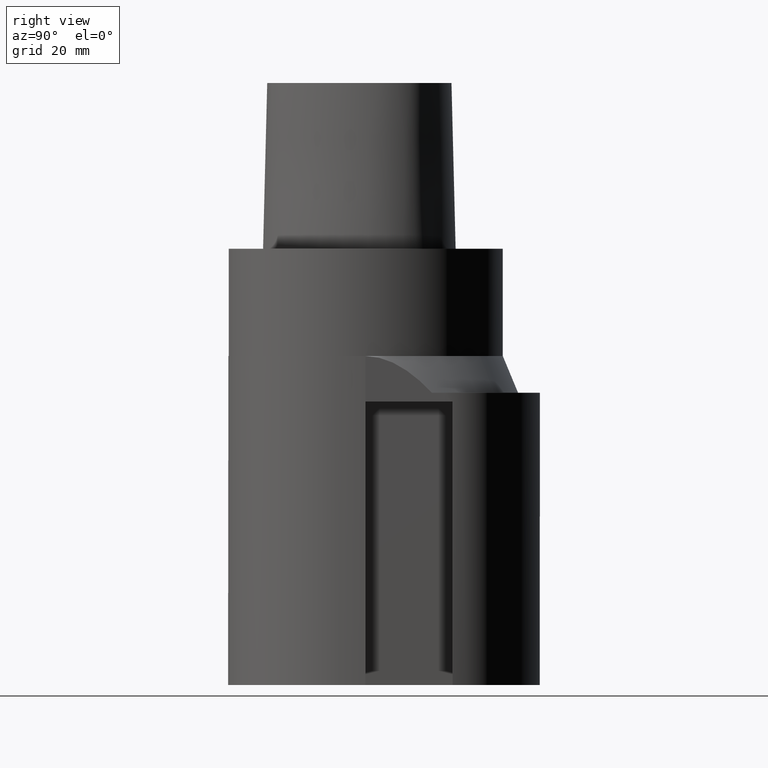
[diagram: clean part render]
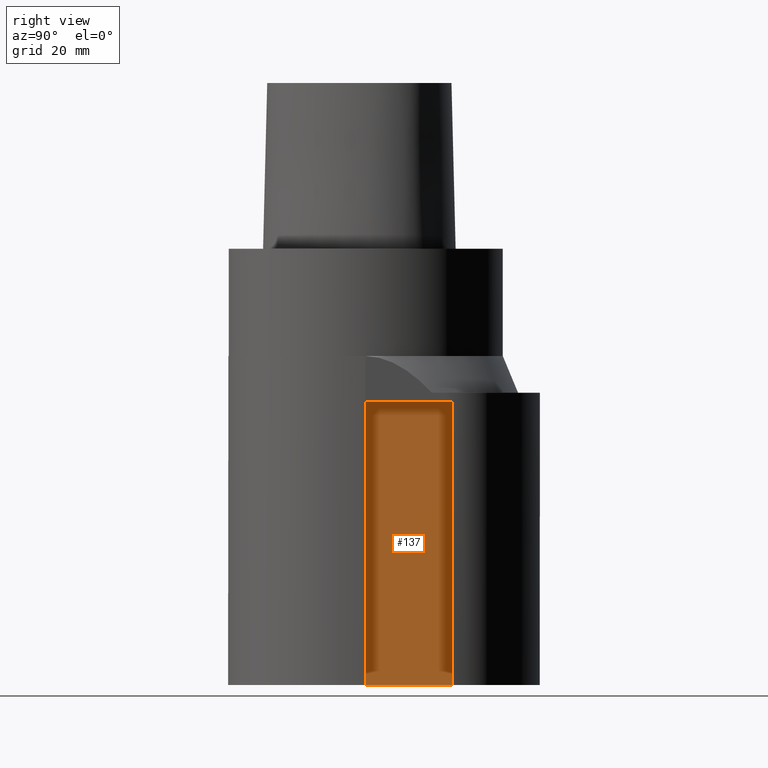
[diagram: same view with one face highlighted and labeled with its STEP entity id]
A machine part, right view. The second image highlights one B-rep face of the part: STEP entity #137.
In plain terms, the highlighted planar face has unit normal (-1, 0, 0).
Its self-contained STEP definition (entity closure, byte-faithful):
#104=EDGE_CURVE('240[2]',#286,#287,#288,.T.);
#112=EDGE_CURVE('240[2]',#287,#302,#303,.F.);
#137=ADVANCED_FACE('240[2]',(#337),#338,.F.);
#175=EDGE_CURVE('240[2]',#302,#290,#386,.T.);
#197=EDGE_CURVE('240[2]',#286,#290,#415,.T.);
#286=VERTEX_POINT('',#519);
#287=VERTEX_POINT('',#520);
#288=LINE('',#521,#522);
#290=VERTEX_POINT('',#525);
#302=VERTEX_POINT('',#543);
#303=LINE('',#544,#545);
#337=FACE_OUTER_BOUND('',#640,.T.);
#338=PLANE('',#641);
#386=LINE('',#716,#717);
#415=LINE('',#822,#823);
#519=CARTESIAN_POINT('',(11.5000000000002,20.0000000000005,-99.9999998226051));
#520=CARTESIAN_POINT('',(11.5,-2.39812849879307E-013,-99.9999998226051));
#521=CARTESIAN_POINT('',(11.5000000000002,14.95,-99.9999998226051));
#522=VECTOR('',#1053,1.0);
#525=CARTESIAN_POINT('',(11.5000000000002,20.0000000000005,-34.9999998226051));
#543=CARTESIAN_POINT('',(11.4999999999999,-2.31863700469042E-013,-34.9999998226051));
#544=CARTESIAN_POINT('',(11.5,-2.57837001338476E-013,-244.999999822605));
#545=VECTOR('',#1057,1.0);
#640=EDGE_LOOP('',(#1086,#1087,#1088,#1089));
#641=AXIS2_PLACEMENT_3D('',#1090,#1091,#1092);
#716=CARTESIAN_POINT('',(11.4999999999999,-0.200000000000216,-34.9999998226051));
#717=VECTOR('',#1153,1.0);
#822=CARTESIAN_POINT('',(11.5000000000002,20.0000000000005,-244.999999822605));
#823=VECTOR('',#1204,1.0);
#1053=DIRECTION('',(-1.41926178632825E-014,-1.0,1.22464679914736E-016));
#1057=DIRECTION('',(-6.12323399573676E-017,-1.22464679914736E-016,-1.0));
#1086=ORIENTED_EDGE('',*,*,#104,.F.);
#1087=ORIENTED_EDGE('',*,*,#197,.T.);
#1088=ORIENTED_EDGE('',*,*,#175,.F.);
#1089=ORIENTED_EDGE('',*,*,#112,.F.);
#1090=CARTESIAN_POINT('',(11.5000000000001,9.90000000000012,-244.999999822605));
#1091=DIRECTION('',(-1.0,1.41926178632825E-014,6.12323399573659E-017));
#1092=DIRECTION('',(6.12323399573659E-017,0.0,1.0));
#1153=DIRECTION('',(1.41926178632825E-014,1.0,-1.22464679914736E-016));
#1204=DIRECTION('',(6.12323399573677E-017,1.22464679914735E-016,1.0));